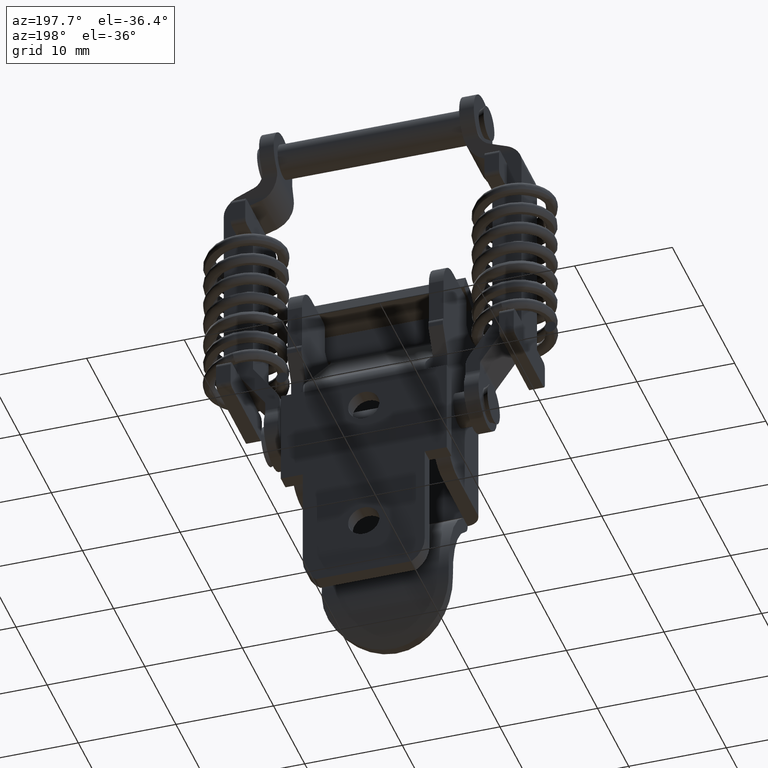
[diagram: clean part render]
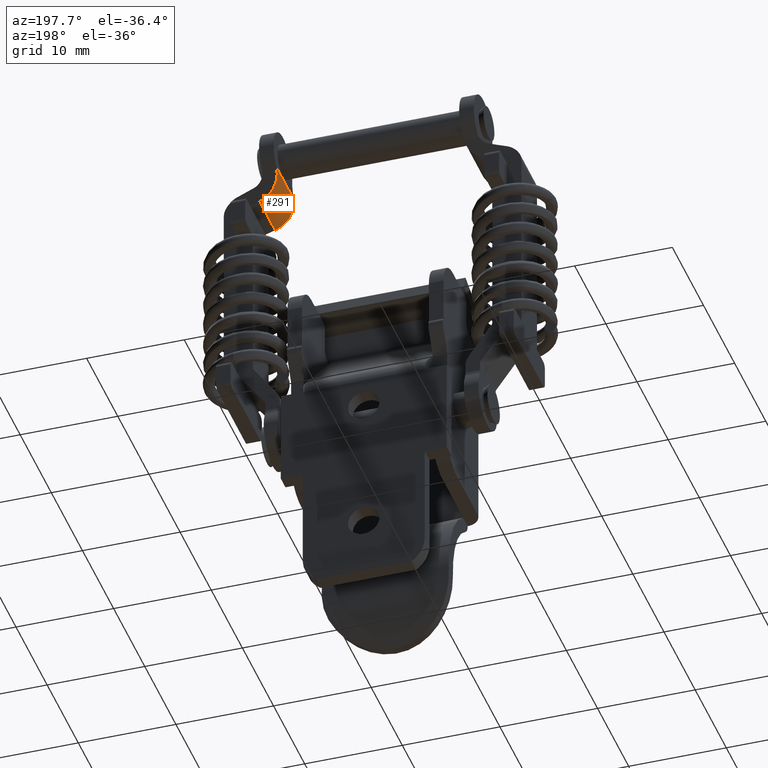
[diagram: same view with one face highlighted and labeled with its STEP entity id]
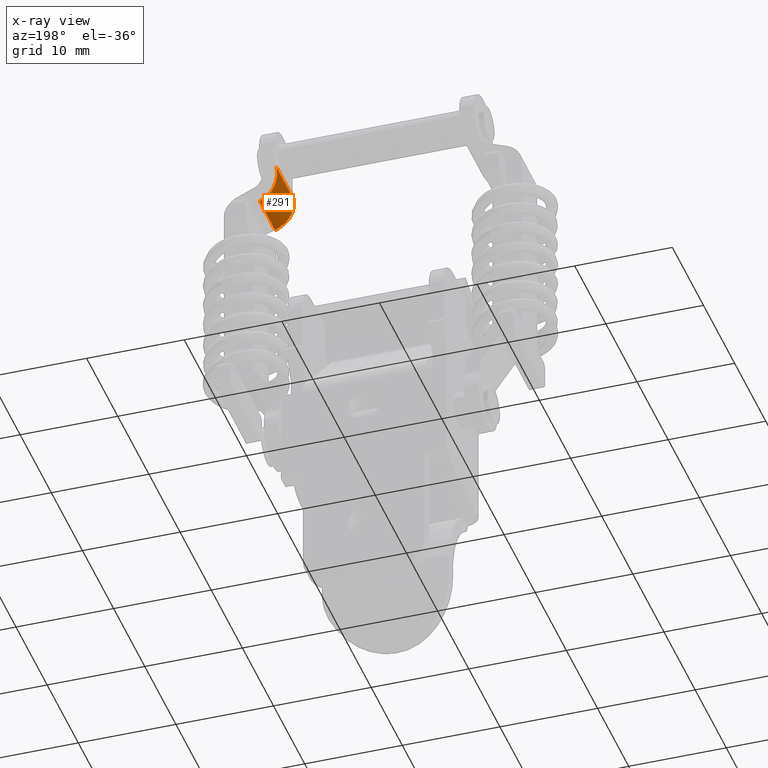
[diagram: x-ray of the same camera — body ghosted, the highlighted face saturated]
A machine part, auxiliary view. The second image highlights one B-rep face of the part: STEP entity #291.
The next image is the same camera in x-ray: the body ghosted, the highlighted face saturated — about 0% of this face is hidden behind the body in this view.
In plain terms, the highlighted cylindrical surface (edge-blend (fillet) strip) has radius 3 mm, axis along (0, 1, 0).
Its self-contained STEP definition (entity closure, byte-faithful):
#291=ADVANCED_FACE('',(#1050),#1049,.T.);
#1049=CYLINDRICAL_SURFACE('',#2993,3.00000000000E+00);
#1050=FACE_OUTER_BOUND('',#2994,.T.);
#2990=CARTESIAN_POINT('',(-2.77066177338E+00,2.41000000000E+01,-2.08695565602E+00));
#2991=DIRECTION('',(-1.00000000000E+00,5.30443365069E-31,9.42988634710E-17));
#2992=DIRECTION('',(-0.00000000000E+00,1.00000000000E+00,-5.62512999143E-15));
#2993=AXIS2_PLACEMENT_3D('',#2990,#2991,#2992);
#2994=EDGE_LOOP('',(#6533,#6534,#6535,#6536,#6537,#6538,#6539,#6540,#6541,#6542));
#6533=ORIENTED_EDGE('',*,*,#7570,.T.);
#6534=ORIENTED_EDGE('',*,*,#7571,.F.);
#6535=ORIENTED_EDGE('',*,*,#7572,.T.);
#6536=ORIENTED_EDGE('',*,*,#7560,.T.);
#6537=ORIENTED_EDGE('',*,*,#7573,.T.);
#6538=ORIENTED_EDGE('',*,*,#7574,.T.);
#6539=ORIENTED_EDGE('',*,*,#7544,.T.);
#6540=ORIENTED_EDGE('',*,*,#7528,.F.);
#6541=ORIENTED_EDGE('',*,*,#7553,.T.);
#6542=ORIENTED_EDGE('',*,*,#7569,.F.);
#7528=EDGE_CURVE('',#8920,#8927,#8928,.T.);
#7544=EDGE_CURVE('',#9037,#8927,#9038,.T.);
#7553=EDGE_CURVE('',#8920,#9092,#9099,.T.);
#7560=EDGE_CURVE('',#9146,#9139,#9147,.T.);
#7569=EDGE_CURVE('',#9199,#9092,#9206,.T.);
#7570=EDGE_CURVE('',#9199,#9212,#9213,.T.);
#7571=EDGE_CURVE('',#9219,#9212,#9220,.T.);
#7572=EDGE_CURVE('',#9219,#9146,#9226,.T.);
#7573=EDGE_CURVE('',#9139,#9232,#9233,.T.);
#7574=EDGE_CURVE('',#9232,#9037,#9239,.T.);
#8920=VERTEX_POINT('',#12586);
#8927=VERTEX_POINT('',#12590);
#8928=(BOUNDED_CURVE() B_SPLINE_CURVE(3,(#12591,#12592,#12593,#12594,#12595,#12596),.UNSPECIFIED.,.F.,.F.) B_SPLINE_CURVE_WITH_KNOTS((4,2,4),(4.84869951806E-19,3.57223214220E-04,7.14446428440E-04),.UNSPECIFIED.) CURVE() GEOMETRIC_REPRESENTATION_ITEM() RATIONAL_B_SPLINE_CURVE((1.00000000000E+00,1.00000000000E+00,1.00000000000E+00,1.00000000000E+00,1.00000000000E+00,1.00000000000E+00)) REPRESENTATION_ITEM('') );
#9037=VERTEX_POINT('',#12669);
#9038=(BOUNDED_CURVE() B_SPLINE_CURVE(3,(#12670,#12671,#12672,#12673),.UNSPECIFIED.,.F.,.F.) B_SPLINE_CURVE_WITH_KNOTS((4,4),(9.51136400519E-18,1.66857354581E-04),.UNSPECIFIED.) CURVE() GEOMETRIC_REPRESENTATION_ITEM() RATIONAL_B_SPLINE_CURVE((1.00000000000E+00,1.00000000000E+00,1.00000000000E+00,1.00000000000E+00)) REPRESENTATION_ITEM('') );
#9092=VERTEX_POINT('',#12704);
#9099=(BOUNDED_CURVE() B_SPLINE_CURVE(2,(#12708,#12709,#12710),.UNSPECIFIED.,.F.,.F.) B_SPLINE_CURVE_WITH_KNOTS((3,3),(1.80812486528E+00,2.40711270620E+00),.UNSPECIFIED.) CURVE() GEOMETRIC_REPRESENTATION_ITEM() RATIONAL_B_SPLINE_CURVE((1.00000000000E+00,9.55485923510E-01,1.00000000000E+00)) REPRESENTATION_ITEM('') );
#9139=VERTEX_POINT('',#12735);
#9146=VERTEX_POINT('',#12739);
#9147=(BOUNDED_CURVE() B_SPLINE_CURVE(3,(#12740,#12741,#12742,#12743,#12744,#12745,#12746,#12747,#12748,#12749),.UNSPECIFIED.,.F.,.F.) B_SPLINE_CURVE_WITH_KNOTS((4,2,2,2,4),(3.87895961445E-18,7.40916658632E-04,1.48183331726E-03,2.22274997590E-03,2.96366663453E-03),.UNSPECIFIED.) CURVE() GEOMETRIC_REPRESENTATION_ITEM() RATIONAL_B_SPLINE_CURVE((1.00000000000E+00,1.00000000000E+00,1.00000000000E+00,1.00000000000E+00,1.00000000000E+00,1.00000000000E+00,1.00000000000E+00,1.00000000000E+00,1.00000000000E+00,1.00000000000E+00)) REPRESENTATION_ITEM('') );
#9199=VERTEX_POINT('',#12783);
#9206=(BOUNDED_CURVE() B_SPLINE_CURVE(3,(#12787,#12788,#12789,#12790,#12791,#12792),.UNSPECIFIED.,.F.,.F.) B_SPLINE_CURVE_WITH_KNOTS((4,2,4),(1.98406035242E-17,4.72804255767E-04,9.45608511534E-04),.UNSPECIFIED.) CURVE() GEOMETRIC_REPRESENTATION_ITEM() RATIONAL_B_SPLINE_CURVE((1.00000000000E+00,1.00000000000E+00,1.00000000000E+00,1.00000000000E+00,1.00000000000E+00,1.00000000000E+00)) REPRESENTATION_ITEM('') );
#9212=VERTEX_POINT('',#12793);
#9213=CIRCLE('',#12797,2.99999999999E+00);
#9219=VERTEX_POINT('',#12798);
#9220=LINE('',#12799,#12800);
#9226=CIRCLE('',#12805,3.00000000000E+00);
#9232=VERTEX_POINT('',#12806);
#9233=CIRCLE('',#12810,3.39224138121E+00);
#9239=LINE('',#12811,#12812);
#12586=CARTESIAN_POINT('',(-1.64414988344E+00,2.11840914357E+01,-2.79227632387E+00));
#12590=CARTESIAN_POINT('',(-2.03579618308E+00,2.11022660844E+01,-2.20353769258E+00));
#12591=CARTESIAN_POINT('',(-1.64414988344E+00,2.11840914357E+01,-2.79227632387E+00));
#12592=CARTESIAN_POINT('',(-1.68445340909E+00,2.11573065449E+01,-2.68154329723E+00));
#12593=CARTESIAN_POINT('',(-1.73732115219E+00,2.11385098566E+01,-2.57640661712E+00));
#12594=CARTESIAN_POINT('',(-1.86849876910E+00,2.11125032637E+01,-2.37824479625E+00));
#12595=CARTESIAN_POINT('',(-1.94709131062E+00,2.11054531978E+01,-2.28548957963E+00));
#12596=CARTESIAN_POINT('',(-2.03579618308E+00,2.11022660844E+01,-2.20353769258E+00));
#12669=CARTESIAN_POINT('',(-2.15514805944E+00,2.11000000000E+01,-2.08695565602E+00));
#12670=CARTESIAN_POINT('',(-2.15514805944E+00,2.11000000000E+01,-2.08695565602E+00));
#12671=CARTESIAN_POINT('',(-2.11645651501E+00,2.11000000000E+01,-2.12691126511E+00));
#12672=CARTESIAN_POINT('',(-2.07663490533E+00,2.11007987734E+01,-2.16580796859E+00));
#12673=CARTESIAN_POINT('',(-2.03579618308E+00,2.11022660844E+01,-2.20353769258E+00));
#12704=CARTESIAN_POINT('',(-1.09047198881E+00,2.20893961781E+01,-4.31349383703E+00));
#12708=CARTESIAN_POINT('',(-1.64414988344E+00,2.11840914357E+01,-2.79227632387E+00));
#12709=CARTESIAN_POINT('',(-1.31643851518E+00,2.14018816427E+01,-3.69265590827E+00));
#12710=CARTESIAN_POINT('',(-1.09047198881E+00,2.20893961781E+01,-4.31349383703E+00));
#12735=CARTESIAN_POINT('',(3.60799111512E+00,2.11447855669E+01,-2.60339312040E+00));
#12739=CARTESIAN_POINT('',(3.99998908001E+00,2.28773941749E+01,-4.82652405201E+00));
#12740=CARTESIAN_POINT('',(3.99998908001E+00,2.28773941749E+01,-4.82652405201E+00));
#12741=CARTESIAN_POINT('',(3.99998908001E+00,2.26487099212E+01,-4.72446757441E+00));
#12742=CARTESIAN_POINT('',(3.99772714925E+00,2.24373441879E+01,-4.59632279957E+00));
#12743=CARTESIAN_POINT('',(3.97960093552E+00,2.20483078536E+01,-4.28966016337E+00));
#12744=CARTESIAN_POINT('',(3.96338689345E+00,2.18714650012E+01,-4.11026194857E+00));
#12745=CARTESIAN_POINT('',(3.90837728006E+00,2.15724639106E+01,-3.72148858965E+00));
#12746=CARTESIAN_POINT('',(3.86857814235E+00,2.14459611006E+01,-3.50627042426E+00));
#12747=CARTESIAN_POINT('',(3.76040404795E+00,2.12530257433E+01,-3.06323147399E+00));
#12748=CARTESIAN_POINT('',(3.69252222956E+00,2.11853718675E+01,-2.83564044855E+00));
#12749=CARTESIAN_POINT('',(3.60799111512E+00,2.11447855669E+01,-2.60339312040E+00));
#12783=CARTESIAN_POINT('',(-1.00001091999E+00,2.28773941749E+01,-4.82652405202E+00));
#12787=CARTESIAN_POINT('',(-1.00001091999E+00,2.28773941749E+01,-4.82652405202E+00));
#12788=CARTESIAN_POINT('',(-1.00001091999E+00,2.27319711771E+01,-4.76162514148E+00));
#12789=CARTESIAN_POINT('',(-1.00408927346E+00,2.25934133439E+01,-4.68597332068E+00));
#12790=CARTESIAN_POINT('',(-1.03029069439E+00,2.23301133507E+01,-4.51434054972E+00));
#12791=CARTESIAN_POINT('',(-1.05264106433E+00,2.22044986709E+01,-4.41743344778E+00));
#12792=CARTESIAN_POINT('',(-1.09047198881E+00,2.20893961781E+01,-4.31349383703E+00));
#12793=CARTESIAN_POINT('',(-1.00001091999E+00,2.31792121376E+01,-4.94215262162E+00));
#12794=CARTESIAN_POINT('',(-1.00001091999E+00,2.41000000000E+01,-2.08695565602E+00));
#12795=DIRECTION('',(1.00000000000E+00,-1.55680042711E-13,7.14641906783E-13));
#12796=DIRECTION('',(-5.89158351736E-13,4.07535275041E-01,9.13189465334E-01));
#12797=AXIS2_PLACEMENT_3D('',#12794,#12795,#12796);
#12798=CARTESIAN_POINT('',(3.99998908001E+00,2.31792121376E+01,-4.94215262162E+00));
#12799=CARTESIAN_POINT('',(3.99998908001E+00,2.31792121376E+01,-4.94215262162E+00));
#12800=VECTOR('',#12801,5.00000000000E+00);
#12801=DIRECTION('',(-1.00000000000E+00,0.00000000000E+00,0.00000000000E+00));
#12802=CARTESIAN_POINT('',(3.99998908001E+00,2.41000000000E+01,-2.08695565602E+00));
#12803=DIRECTION('',(-1.00000000000E+00,-5.74424064102E-14,-1.17911117369E-12));
#12804=DIRECTION('',(-1.13982897195E-12,3.06929287475E-01,9.51732321869E-01));
#12805=AXIS2_PLACEMENT_3D('',#12802,#12803,#12804);
#12806=CARTESIAN_POINT('',(3.42002325022E+00,2.11000000000E+01,-2.08695565602E+00));
#12807=CARTESIAN_POINT('',(3.42008498939E+00,2.44922413764E+01,-2.08712528298E+00));
#12808=DIRECTION('',(-9.39692620785E-01,-2.58418286769E-13,-3.42020143327E-01));
#12809=DIRECTION('',(-5.53929112389E-02,9.86797645949E-01,1.52190772825E-01));
#12810=AXIS2_PLACEMENT_3D('',#12807,#12808,#12809);
#12811=CARTESIAN_POINT('',(3.42002325022E+00,2.11000000000E+01,-2.08695565602E+00));
#12812=VECTOR('',#12813,5.57517130966E+00);
#12813=DIRECTION('',(-1.00000000000E+00,0.00000000000E+00,0.00000000000E+00));